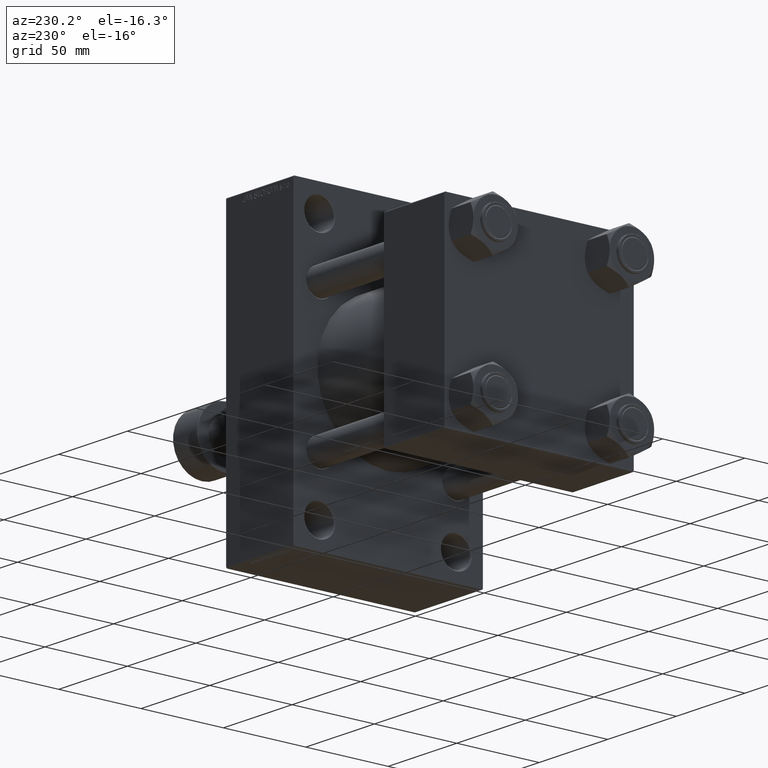
[diagram: clean part render]
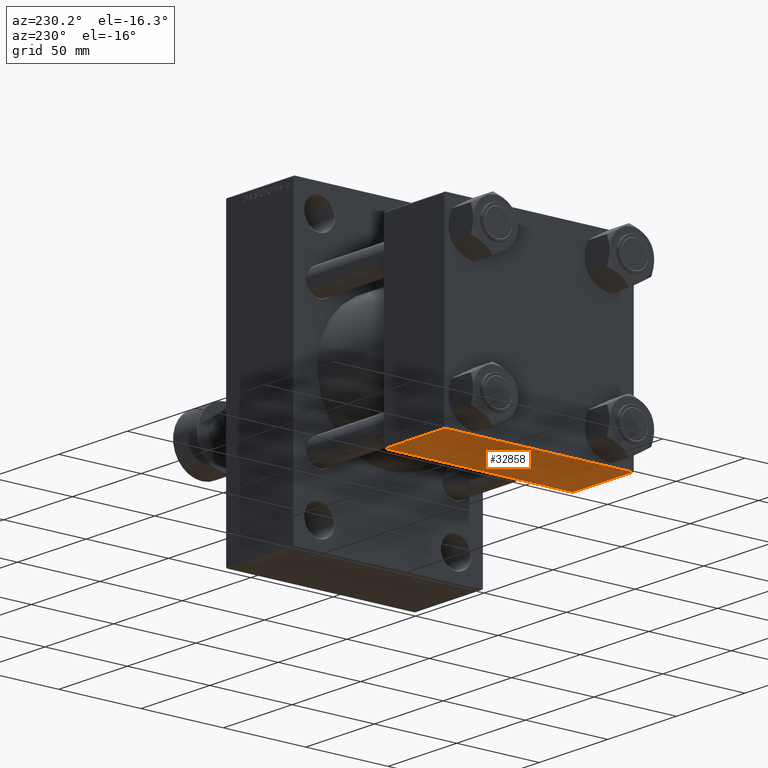
[diagram: same view with one face highlighted and labeled with its STEP entity id]
A machine part, auxiliary view. The second image highlights one B-rep face of the part: STEP entity #32858.
In plain terms, the highlighted planar face has unit normal (0, 0, -1).
Its self-contained STEP definition (entity closure, byte-faithful):
#770 = DIRECTION ( 'NONE',  ( 0.000000000000000000, 1.206764157201257291E-16, -1.000000000000000000 ) ) ;
#1034 = EDGE_LOOP ( 'NONE', ( #2146, #30179, #36585, #18782 ) ) ;
#1243 = CARTESIAN_POINT ( 'NONE',  ( 44.00000000000000000, 57.50000000000000000, -57.49999999999999289 ) ) ;
#2146 = ORIENTED_EDGE ( 'NONE', *, *, #6899, .F. ) ;
#6772 = CARTESIAN_POINT ( 'NONE',  ( 0.000000000000000000, -57.00000000000001421, -57.50000000000000711 ) ) ;
#6899 = EDGE_CURVE ( 'NONE', #11461, #26946, #10045, .T. ) ;
#9514 = CARTESIAN_POINT ( 'NONE',  ( 44.00000000000000000, 57.00000000000002842, -57.49999999999999289 ) ) ;
#9622 = VERTEX_POINT ( 'NONE', #9514 ) ;
#10045 = LINE ( 'NONE', #17356, #25844 ) ;
#11461 = VERTEX_POINT ( 'NONE', #35855 ) ;
#11955 = DIRECTION ( 'NONE',  ( 0.000000000000000000, 1.000000000000000000, 1.206764157201257291E-16 ) ) ;
#13277 = CARTESIAN_POINT ( 'NONE',  ( 44.00000000000000000, 57.50000000000000000, -57.49999999999999289 ) ) ;
#16934 = LINE ( 'NONE', #13277, #26116 ) ;
#17356 = CARTESIAN_POINT ( 'NONE',  ( 0.000000000000000000, 57.50000000000000000, -57.49999999999999289 ) ) ;
#18514 = EDGE_CURVE ( 'NONE', #9622, #24604, #16934, .T. ) ;
#18782 = ORIENTED_EDGE ( 'NONE', *, *, #25857, .T. ) ;
#22184 = DIRECTION ( 'NONE',  ( -1.000000000000000000, 0.000000000000000000, 0.000000000000000000 ) ) ;
#23375 = FACE_OUTER_BOUND ( 'NONE', #1034, .T. ) ;
#24604 = VERTEX_POINT ( 'NONE', #27831 ) ;
#25725 = CARTESIAN_POINT ( 'NONE',  ( 44.00000000000000000, 57.00000000000002842, -57.49999999999999289 ) ) ;
#25844 = VECTOR ( 'NONE', #31948, 1000.000000000000000 ) ;
#25857 = EDGE_CURVE ( 'NONE', #24604, #26946, #37505, .T. ) ;
#26116 = VECTOR ( 'NONE', #42963, 1000.000000000000000 ) ;
#26811 = EDGE_CURVE ( 'NONE', #11461, #9622, #29140, .T. ) ;
#26946 = VERTEX_POINT ( 'NONE', #6772 ) ;
#27831 = CARTESIAN_POINT ( 'NONE',  ( 44.00000000000000000, -57.00000000000001421, -57.50000000000000711 ) ) ;
#29140 = LINE ( 'NONE', #25725, #40040 ) ;
#30179 = ORIENTED_EDGE ( 'NONE', *, *, #26811, .T. ) ;
#30207 = CARTESIAN_POINT ( 'NONE',  ( 0.000000000000000000, -57.00000000000001421, -57.50000000000000711 ) ) ;
#31948 = DIRECTION ( 'NONE',  ( 0.000000000000000000, -1.000000000000000000, -1.206764157201257291E-16 ) ) ;
#32858 = ADVANCED_FACE ( 'NONE', ( #23375 ), #34106, .T. ) ;
#34106 = PLANE ( 'NONE',  #36386 ) ;
#35855 = CARTESIAN_POINT ( 'NONE',  ( 0.000000000000000000, 57.00000000000002842, -57.49999999999999289 ) ) ;
#36386 = AXIS2_PLACEMENT_3D ( 'NONE', #1243, #770, #11955 ) ;
#36440 = DIRECTION ( 'NONE',  ( 1.000000000000000000, 0.000000000000000000, 0.000000000000000000 ) ) ;
#36585 = ORIENTED_EDGE ( 'NONE', *, *, #18514, .T. ) ;
#37505 = LINE ( 'NONE', #30207, #41583 ) ;
#40040 = VECTOR ( 'NONE', #36440, 1000.000000000000000 ) ;
#41583 = VECTOR ( 'NONE', #22184, 1000.000000000000000 ) ;
#42963 = DIRECTION ( 'NONE',  ( 0.000000000000000000, -1.000000000000000000, -1.206764157201257291E-16 ) ) ;